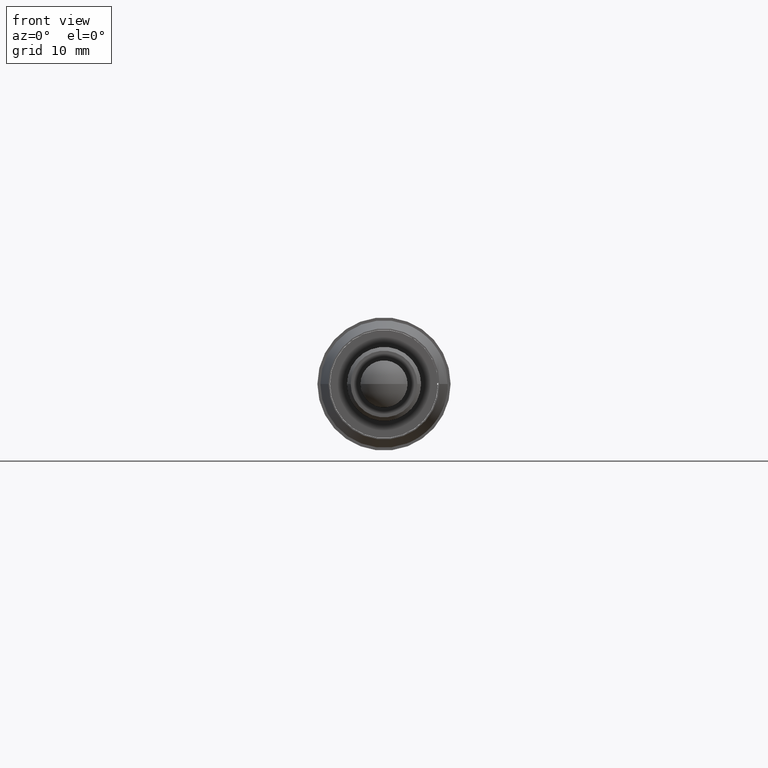
[diagram: clean part render]
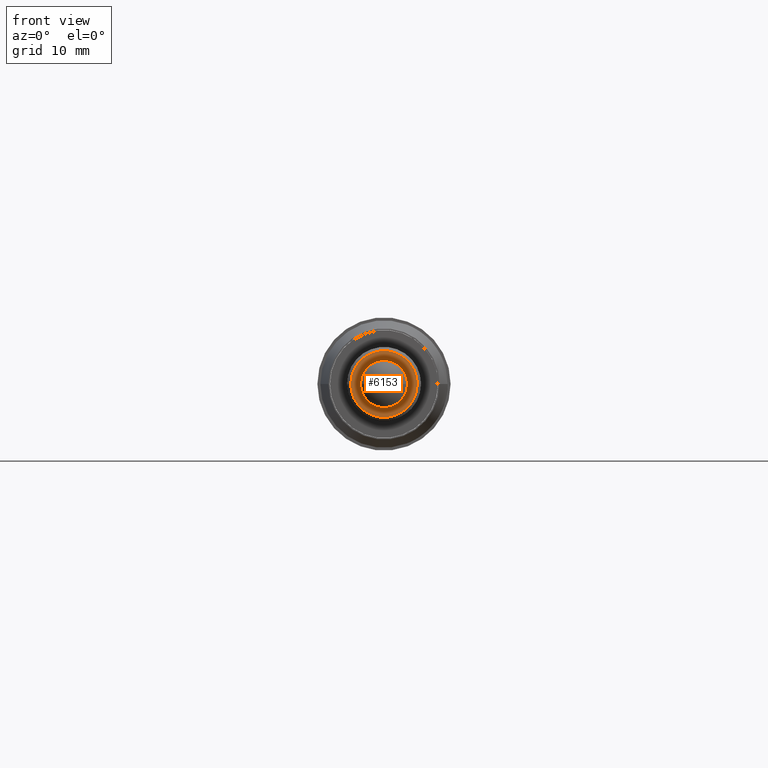
[diagram: same view with one face highlighted and labeled with its STEP entity id]
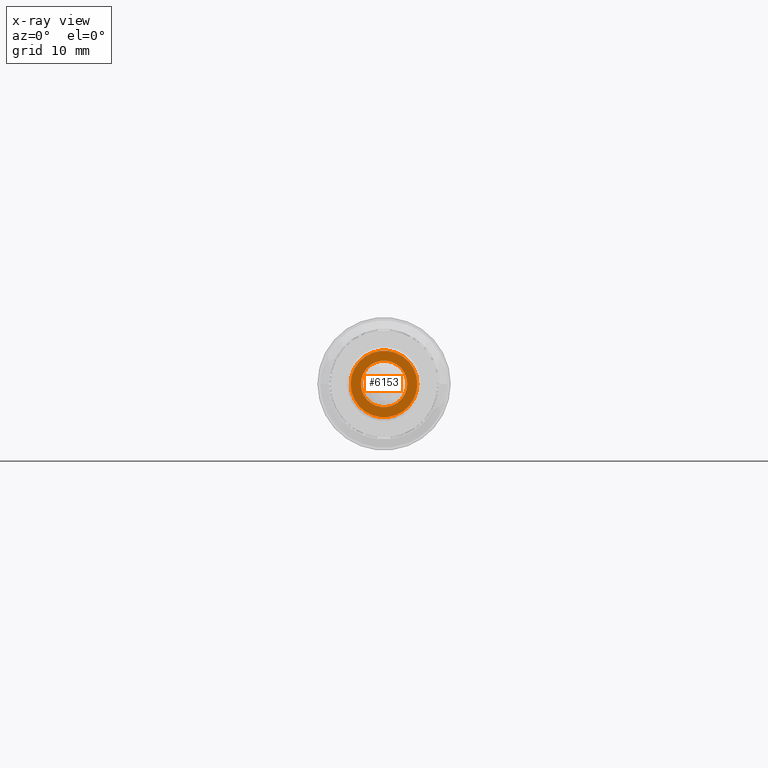
[diagram: x-ray of the same camera — body ghosted, the highlighted face saturated]
A machine part, front view. The second image highlights one B-rep face of the part: STEP entity #6153.
The next image is the same camera in x-ray: the body ghosted, the highlighted face saturated — about 1% of this face is hidden behind the body in this view.
In plain terms, the highlighted planar face has unit normal (0, -1, 0).
Its self-contained STEP definition (entity closure, byte-faithful):
#153 = FACE_OUTER_BOUND ( 'NONE', #482, .T. ) ;
#239 = CARTESIAN_POINT ( 'NONE',  ( 26.94783534030353100, 4.829572553880829800, 23.47757420670093300 ) ) ;
#482 = EDGE_LOOP ( 'NONE', ( #9794, #1273 ) ) ;
#682 = AXIS2_PLACEMENT_3D ( 'NONE', #982, #6812, #1797 ) ;
#982 = CARTESIAN_POINT ( 'NONE',  ( 31.44783534030352400, 4.829572553880830700, 23.47757420670093300 ) ) ;
#1162 = VERTEX_POINT ( 'NONE', #6440 ) ;
#1273 = ORIENTED_EDGE ( 'NONE', *, *, #4667, .T. ) ;
#1578 = AXIS2_PLACEMENT_3D ( 'NONE', #7876, #2862, #8712 ) ;
#1752 = EDGE_CURVE ( 'NONE', #1162, #2706, #8108, .T. ) ;
#1797 = DIRECTION ( 'NONE',  ( 1.000000000000000000, 0.0000000000000000000, 0.0000000000000000000 ) ) ;
#2060 = FACE_BOUND ( 'NONE', #4693, .T. ) ;
#2706 = VERTEX_POINT ( 'NONE', #10391 ) ;
#2755 = CARTESIAN_POINT ( 'NONE',  ( 31.44783534030352400, 4.829572553880830700, 23.47757420670093300 ) ) ;
#2862 = DIRECTION ( 'NONE',  ( 1.058937486943297600E-016, -1.000000000000000000, 0.0000000000000000000 ) ) ;
#3085 = DIRECTION ( 'NONE',  ( 1.058937486943297600E-016, -1.000000000000000000, 0.0000000000000000000 ) ) ;
#3173 = DIRECTION ( 'NONE',  ( 1.058937486943297600E-016, -1.000000000000000000, 0.0000000000000000000 ) ) ;
#3628 = DIRECTION ( 'NONE',  ( 1.000000000000000000, 0.0000000000000000000, 0.0000000000000000000 ) ) ;
#3698 = PLANE ( 'NONE',  #1578 ) ;
#3914 = VERTEX_POINT ( 'NONE', #5716 ) ;
#4542 = CIRCLE ( 'NONE', #6916, 4.499999999999997300 ) ;
#4571 = ORIENTED_EDGE ( 'NONE', *, *, #1752, .F. ) ;
#4667 = EDGE_CURVE ( 'NONE', #3914, #7574, #5515, .T. ) ;
#4693 = EDGE_LOOP ( 'NONE', ( #4571, #7081 ) ) ;
#5515 = CIRCLE ( 'NONE', #8027, 4.499999999999997300 ) ;
#5716 = CARTESIAN_POINT ( 'NONE',  ( 35.94783534030352700, 4.829572553880831600, 23.47757420670093300 ) ) ;
#6033 = EDGE_CURVE ( 'NONE', #2706, #1162, #10588, .T. ) ;
#6153 = ADVANCED_FACE ( 'NONE', ( #153, #2060 ), #3698, .T. ) ;
#6440 = CARTESIAN_POINT ( 'NONE',  ( 34.59783534030351900, 4.829572553880830700, 23.47757420670093300 ) ) ;
#6812 = DIRECTION ( 'NONE',  ( 1.058937486943297600E-016, -1.000000000000000000, 0.0000000000000000000 ) ) ;
#6916 = AXIS2_PLACEMENT_3D ( 'NONE', #8105, #3085, #8941 ) ;
#7081 = ORIENTED_EDGE ( 'NONE', *, *, #6033, .F. ) ;
#7574 = VERTEX_POINT ( 'NONE', #239 ) ;
#7778 = EDGE_CURVE ( 'NONE', #7574, #3914, #4542, .T. ) ;
#7876 = CARTESIAN_POINT ( 'NONE',  ( 26.44783534030353100, 4.829572553880830700, 23.47757420670093300 ) ) ;
#8027 = AXIS2_PLACEMENT_3D ( 'NONE', #8183, #3173, #9021 ) ;
#8095 = AXIS2_PLACEMENT_3D ( 'NONE', #2755, #8606, #3628 ) ;
#8105 = CARTESIAN_POINT ( 'NONE',  ( 31.44783534030352700, 4.829572553880830700, 23.47757420670093300 ) ) ;
#8108 = CIRCLE ( 'NONE', #8095, 3.149999999999999900 ) ;
#8183 = CARTESIAN_POINT ( 'NONE',  ( 31.44783534030352700, 4.829572553880830700, 23.47757420670093300 ) ) ;
#8606 = DIRECTION ( 'NONE',  ( 1.058937486943297600E-016, -1.000000000000000000, 0.0000000000000000000 ) ) ;
#8712 = DIRECTION ( 'NONE',  ( 1.000000000000000000, 1.058937486943297600E-016, 0.0000000000000000000 ) ) ;
#8941 = DIRECTION ( 'NONE',  ( 1.000000000000000000, 1.927470528863120000E-016, 0.0000000000000000000 ) ) ;
#9021 = DIRECTION ( 'NONE',  ( 1.000000000000000000, 1.927470528863120000E-016, 0.0000000000000000000 ) ) ;
#9794 = ORIENTED_EDGE ( 'NONE', *, *, #7778, .T. ) ;
#10391 = CARTESIAN_POINT ( 'NONE',  ( 28.29783534030352100, 4.829572553880830700, 23.47757420670093300 ) ) ;
#10588 = CIRCLE ( 'NONE', #682, 3.149999999999999900 ) ;